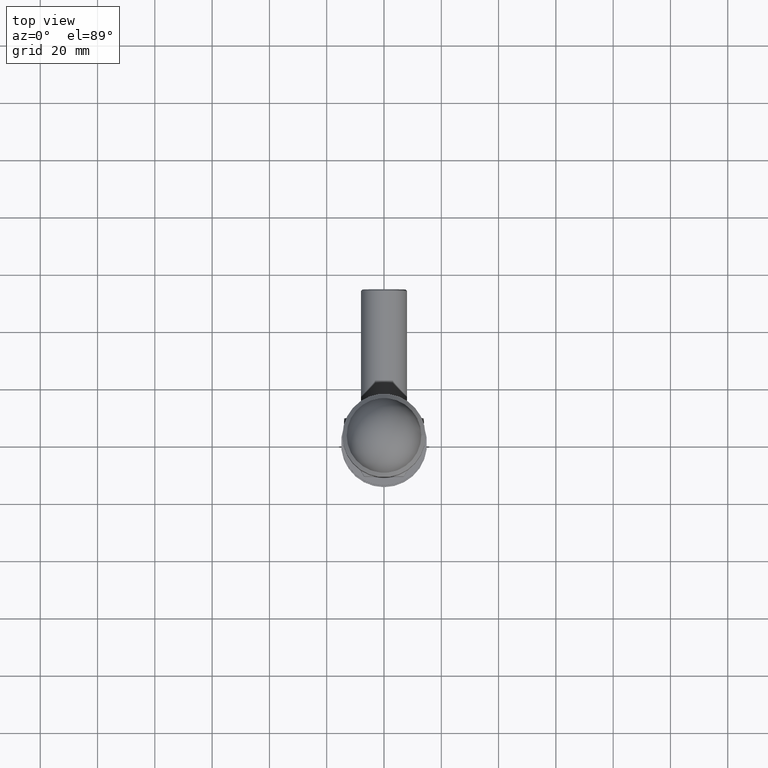
[diagram: clean part render]
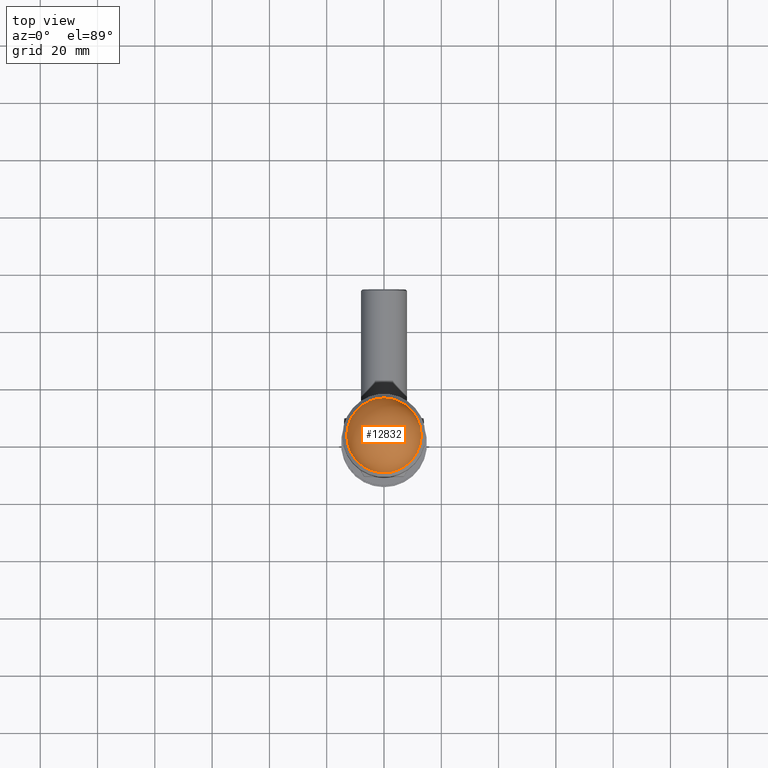
[diagram: same view with one face highlighted and labeled with its STEP entity id]
A machine part, top view. The second image highlights one B-rep face of the part: STEP entity #12832.
In plain terms, the highlighted spherical surface has radius 13.0357 mm.
Its self-contained STEP definition (entity closure, byte-faithful):
#534 = CARTESIAN_POINT ( 'NONE',  ( 2.524354896707237777E-26, 15.96428571428571530, 0.000000000000000000 ) ) ;
#858 = SPHERICAL_SURFACE ( 'NONE', #3318, 13.03571428571428648 ) ;
#1239 = ORIENTED_EDGE ( 'NONE', *, *, #14098, .T. ) ;
#2736 = FACE_OUTER_BOUND ( 'NONE', #6849, .T. ) ;
#3318 = AXIS2_PLACEMENT_3D ( 'NONE', #534, #12682, #5535 ) ;
#5535 = DIRECTION ( 'NONE',  ( -1.000000000000000000, 0.000000000000000000, 0.000000000000000000 ) ) ;
#6104 = CIRCLE ( 'NONE', #12222, 13.02573483128037246 ) ;
#6720 = DIRECTION ( 'NONE',  ( 1.000000000000000000, 0.000000000000000000, 0.000000000000000000 ) ) ;
#6849 = EDGE_LOOP ( 'NONE', ( #1239 ) ) ;
#8240 = CARTESIAN_POINT ( 'NONE',  ( 13.02573483128037246, 16.47426516871963642, 0.000000000000000000 ) ) ;
#8297 = VERTEX_POINT ( 'NONE', #8240 ) ;
#9129 = CARTESIAN_POINT ( 'NONE',  ( 2.552690939717782462E-26, 16.47426516871963642, 0.000000000000000000 ) ) ;
#12222 = AXIS2_PLACEMENT_3D ( 'NONE', #9129, #12716, #6720 ) ;
#12682 = DIRECTION ( 'NONE',  ( 0.000000000000000000, 0.000000000000000000, 1.000000000000000000 ) ) ;
#12716 = DIRECTION ( 'NONE',  ( 5.556310703143452550E-28, 1.000000000000000000, -0.000000000000000000 ) ) ;
#12832 = ADVANCED_FACE ( 'NONE', ( #2736 ), #858, .T. ) ;
#14098 = EDGE_CURVE ( 'NONE', #8297, #8297, #6104, .T. ) ;